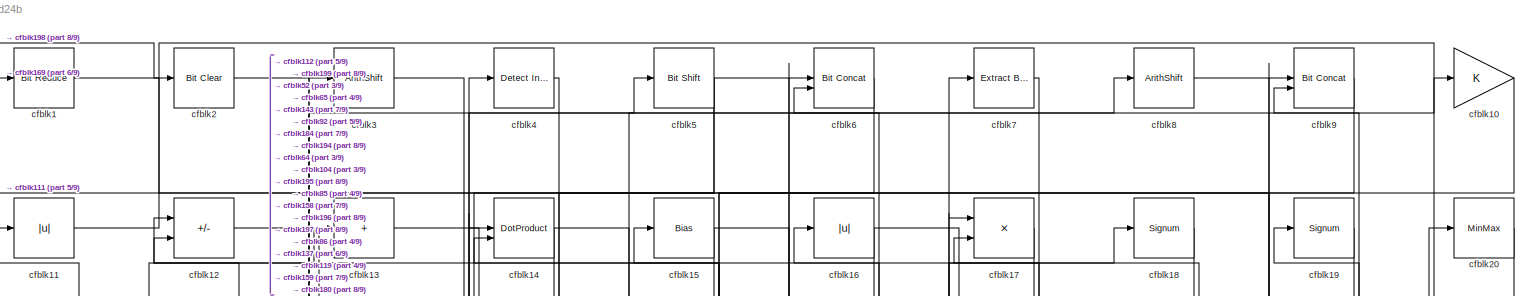
[diagram: root canvas - part 1/9, full width, top band]
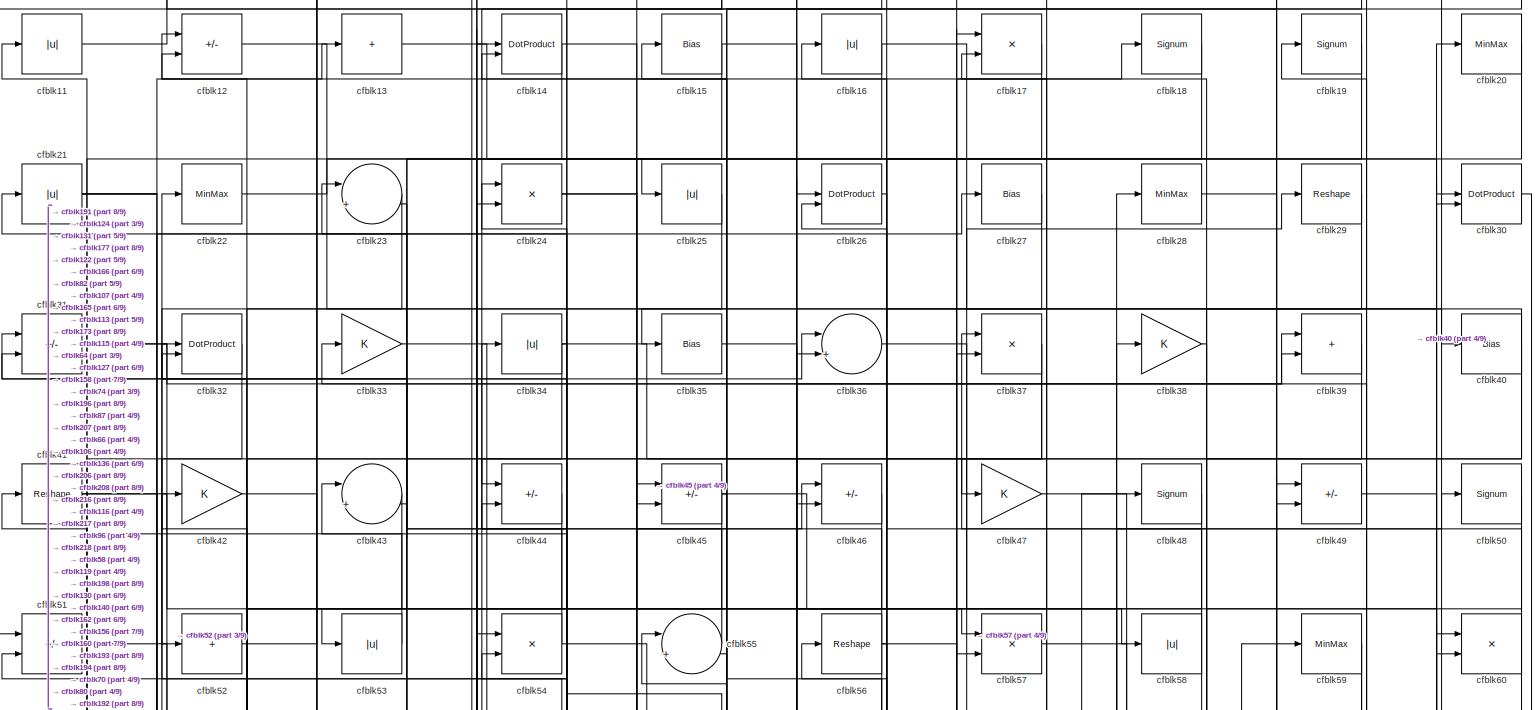
[diagram: root canvas - part 2/9, full width, top band]
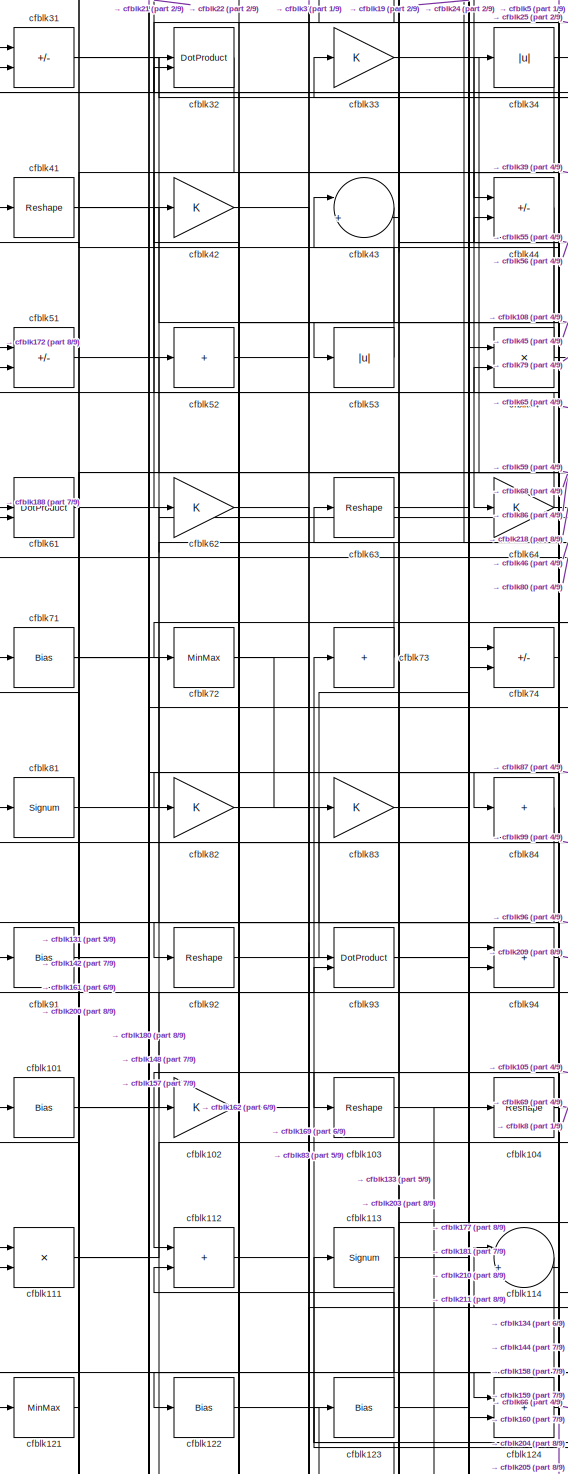
[diagram: root canvas - part 3/9, middle left region]
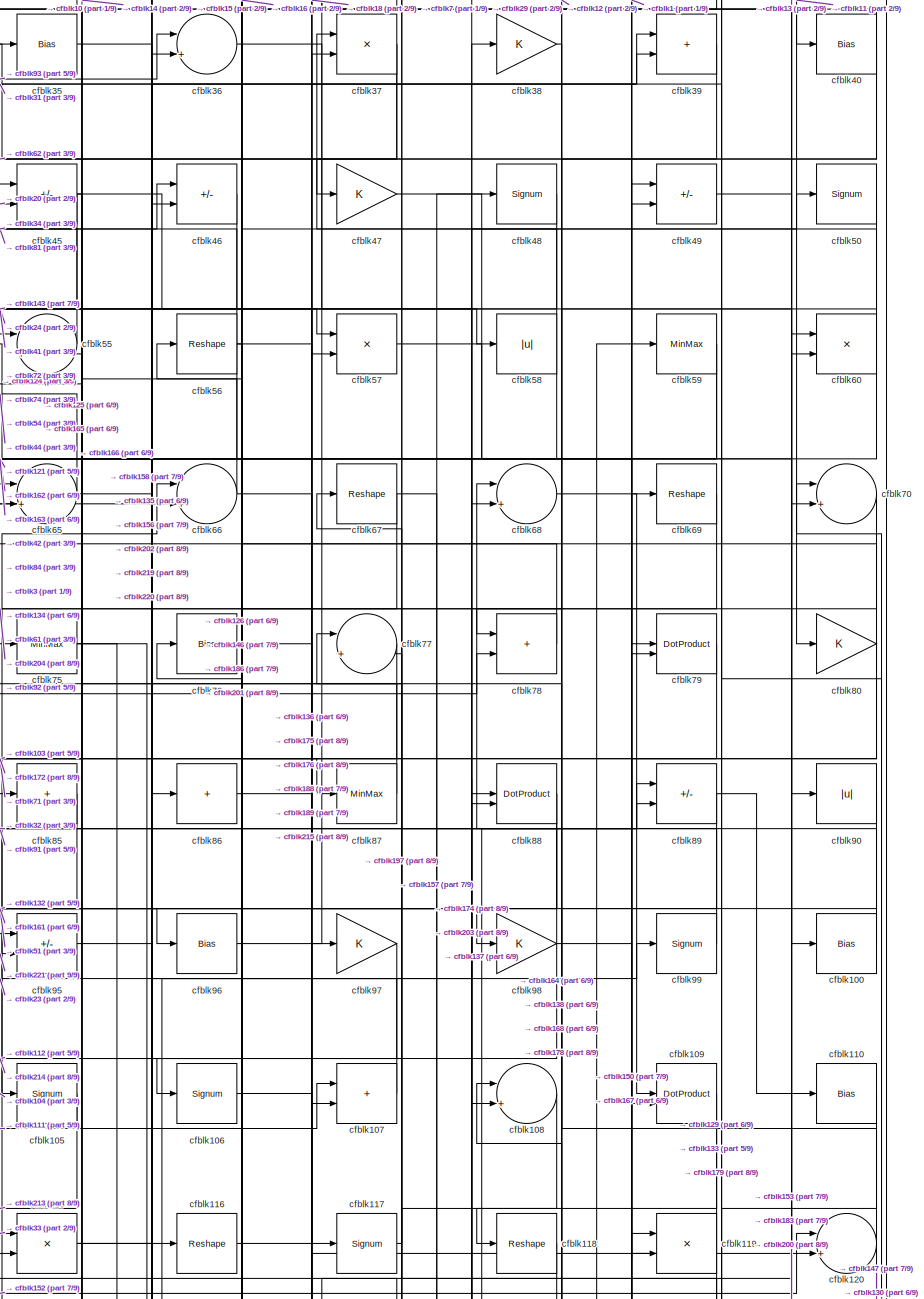
[diagram: root canvas - part 4/9, top right region]
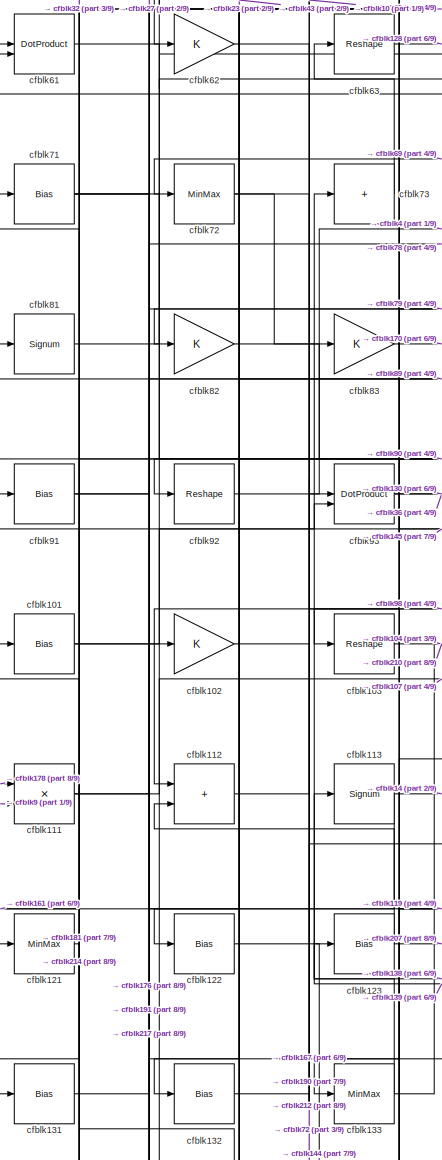
[diagram: root canvas - part 5/9, middle left region]
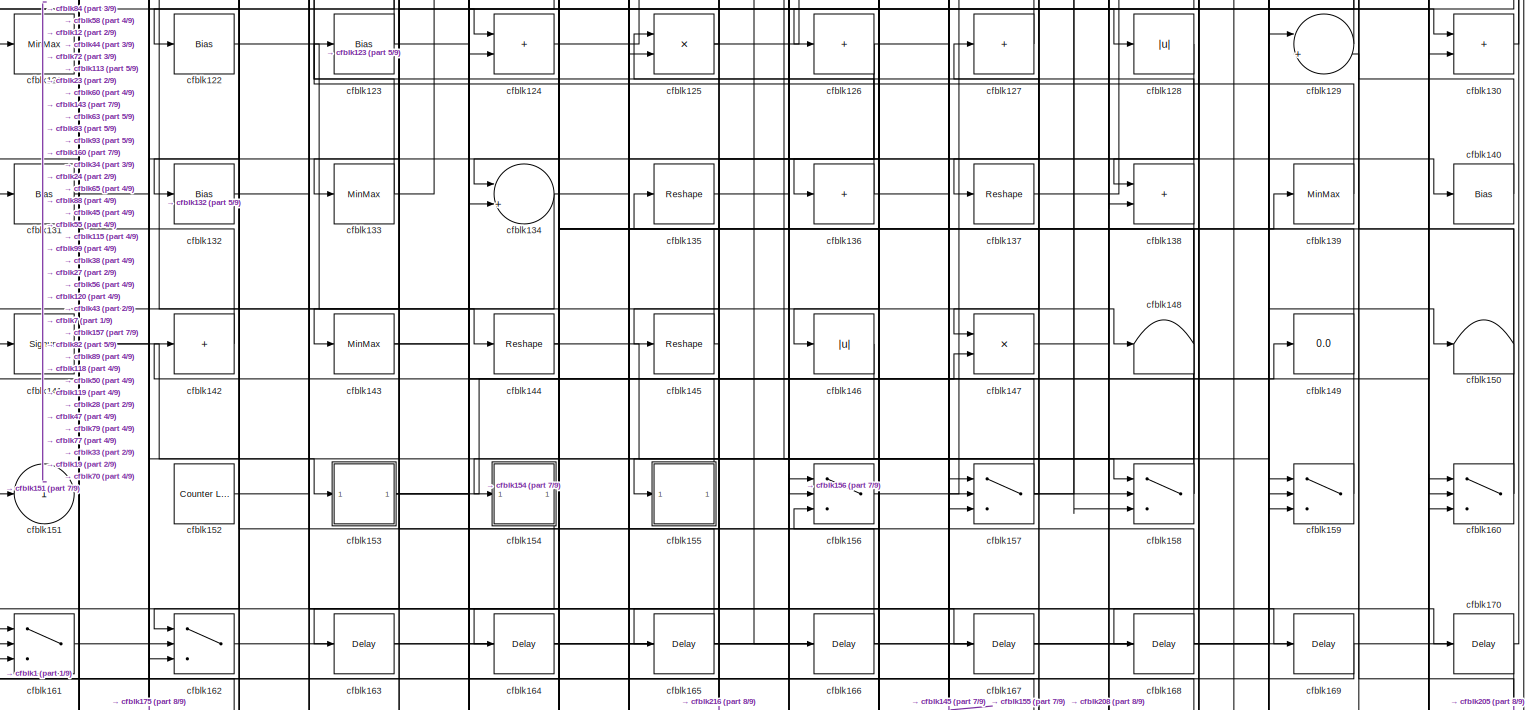
[diagram: root canvas - part 6/9, full width, middle band]
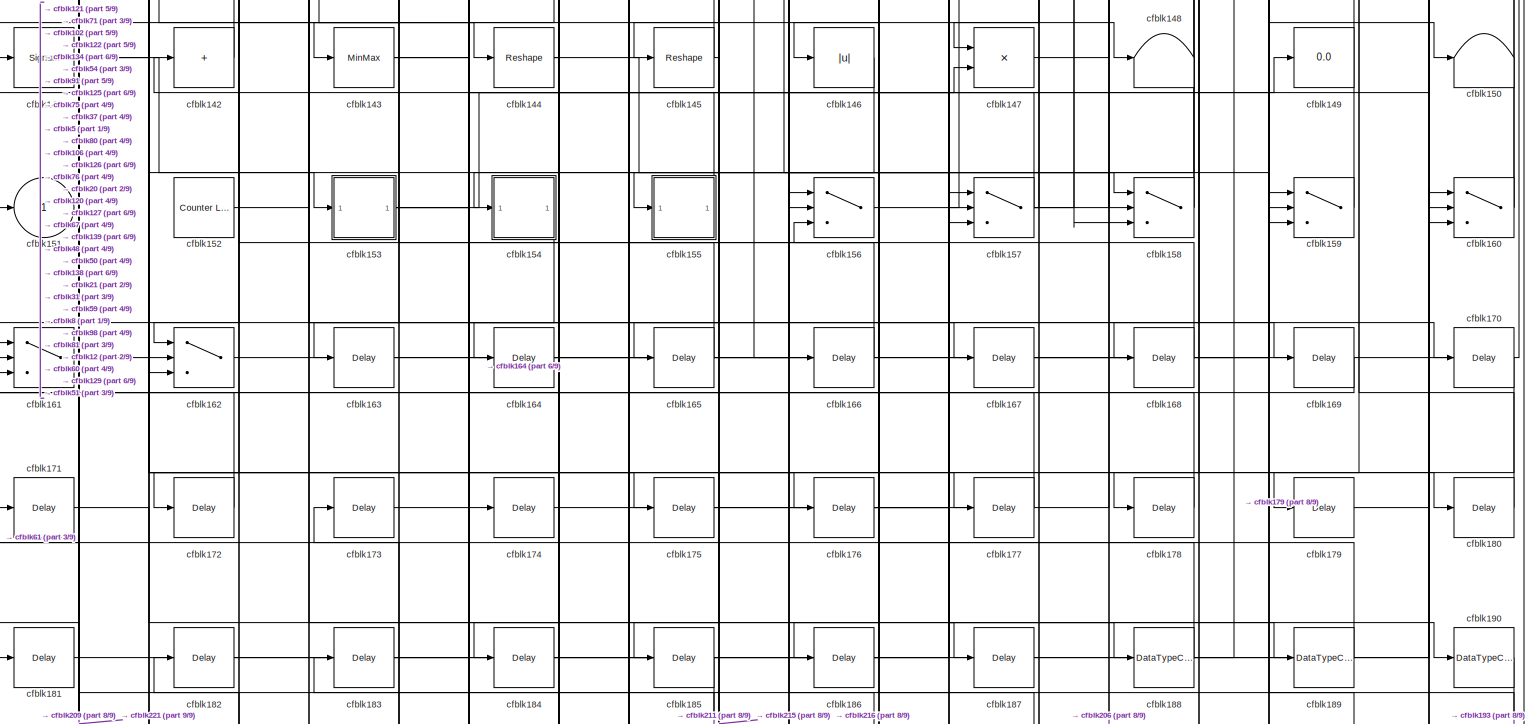
[diagram: root canvas - part 7/9, full width, bottom band]
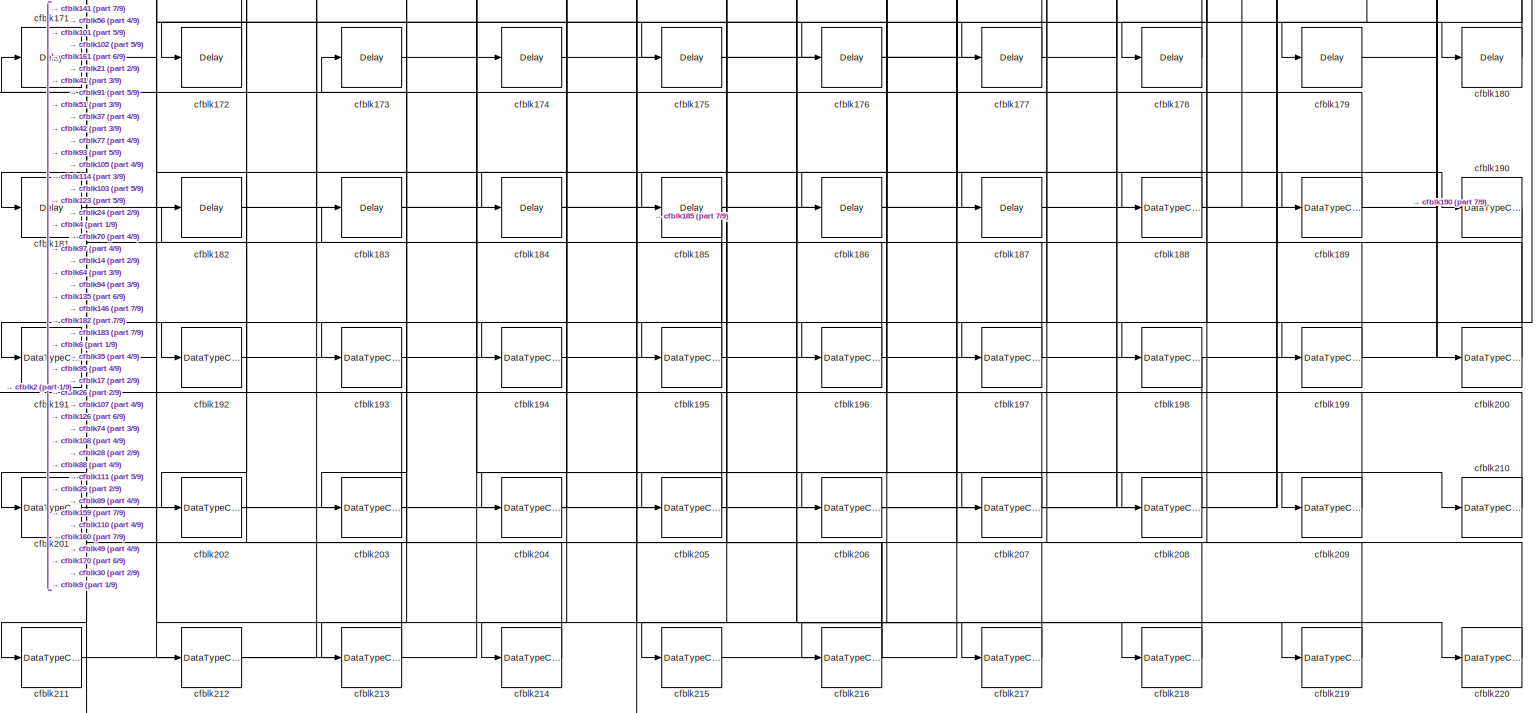
[diagram: root canvas - part 8/9, full width, bottom band]
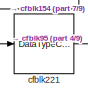
[diagram: root canvas - part 9/9, bottom left region]
MODEL slx_7cb9deabd24b
KIND model
CONFIG AbsTol = auto
CONFIG EnableMultiTasking = off
CONFIG FixedStep = auto
CONFIG MaxStep = auto
CONFIG MinStep = auto
CONFIG RelTol = 1e-3
CONFIG SampleTimeConstraint = Unconstrained
CONFIG SolverName = VariableStepAuto
CONFIG StartTime = 0.0
CONFIG StopTime = 10.0
BLOCK [Reference] cfblk1  REF=hdlsllib/Logic and Bit
Operations/Bit Reduce
  SourceBlock = hdlsllib/Logic and Bit\nOperations/Bit Reduce
  SourceType = Bit Reduce
BLOCK [Gain] cfblk10
BLOCK [Bias] cfblk100
  Bias = 0.0
  SaturateOnIntegerOverflow = off
BLOCK [Bias] cfblk101
  Bias = 0.0
  SaturateOnIntegerOverflow = off
BLOCK [Gain] cfblk102
BLOCK [Reshape] cfblk103
BLOCK [Reshape] cfblk104
BLOCK [Signum] cfblk105
BLOCK [Signum] cfblk106
BLOCK [Sum] cfblk107
  IconShape = rectangular
BLOCK [Sum] cfblk108
  Inputs = |++
BLOCK [DotProduct] cfblk109
  OutDataTypeStr = Inherit: Inherit via internal rule
BLOCK [Abs] cfblk11
  SaturateOnIntegerOverflow = off
BLOCK [Bias] cfblk110
  Bias = 0.0
  SaturateOnIntegerOverflow = off
BLOCK [Product] cfblk111
  Inputs = */
  RndMeth = Zero
  SaturateOnIntegerOverflow = on
BLOCK [Sum] cfblk112
  IconShape = rectangular
BLOCK [Signum] cfblk113
BLOCK [Sum] cfblk114
  Inputs = |++
BLOCK [Product] cfblk115
  Inputs = */
  RndMeth = Zero
  SaturateOnIntegerOverflow = on
BLOCK [Reshape] cfblk116
BLOCK [Signum] cfblk117
BLOCK [Reshape] cfblk118
BLOCK [Product] cfblk119
  Inputs = */
  RndMeth = Zero
  SaturateOnIntegerOverflow = on
BLOCK [Sum] cfblk12
  IconShape = rectangular
  Inputs = +-
BLOCK [Sum] cfblk120
  Inputs = |++
BLOCK [MinMax] cfblk121
BLOCK [Bias] cfblk122
  Bias = 0.0
  SaturateOnIntegerOverflow = off
BLOCK [Bias] cfblk123
  Bias = 0.0
  SaturateOnIntegerOverflow = off
BLOCK [Sum] cfblk124
  IconShape = rectangular
BLOCK [Product] cfblk125
  Inputs = */
  RndMeth = Zero
  SaturateOnIntegerOverflow = on
BLOCK [Sum] cfblk126
  IconShape = rectangular
  Inputs = +
BLOCK [Sum] cfblk127
  IconShape = rectangular
  Inputs = +
BLOCK [Abs] cfblk128
  SaturateOnIntegerOverflow = off
BLOCK [Sum] cfblk129
  Inputs = |++
BLOCK [Sum] cfblk13
  IconShape = rectangular
  Inputs = +
BLOCK [Sum] cfblk130
  IconShape = rectangular
BLOCK [Bias] cfblk131
  Bias = 0.0
  SaturateOnIntegerOverflow = off
BLOCK [Bias] cfblk132
  Bias = 0.0
  SaturateOnIntegerOverflow = off
BLOCK [MinMax] cfblk133
BLOCK [Sum] cfblk134
  Inputs = |++
BLOCK [Reshape] cfblk135
BLOCK [Sum] cfblk136
  IconShape = rectangular
  Inputs = +
BLOCK [Reshape] cfblk137
BLOCK [Sum] cfblk138
  IconShape = rectangular
BLOCK [MinMax] cfblk139
BLOCK [DotProduct] cfblk14
  OutDataTypeStr = Inherit: Inherit via internal rule
BLOCK [Bias] cfblk140
  Bias = 0.0
  SaturateOnIntegerOverflow = off
BLOCK [Signum] cfblk141
BLOCK [Sum] cfblk142
  IconShape = rectangular
  Inputs = +
BLOCK [MinMax] cfblk143
BLOCK [Reshape] cfblk144
BLOCK [Reshape] cfblk145
BLOCK [Abs] cfblk146
  SaturateOnIntegerOverflow = off
BLOCK [Product] cfblk147
  Inputs = */
  RndMeth = Zero
  SaturateOnIntegerOverflow = on
BLOCK [Terminator] cfblk148
BLOCK [Display] cfblk149
  Decimation = 1
BLOCK [Bias] cfblk15
  Bias = 0.0
  SaturateOnIntegerOverflow = off
BLOCK [Terminator] cfblk150
BLOCK [Outport] cfblk151
  VectorParamsAs1DForOutWhenUnconnected = off
BLOCK [Reference] cfblk152  REF=hdlsllib/Sources/Counter
Limited
  SourceBlock = hdlsllib/Sources/Counter\nLimited
  SourceType = Counter Limited
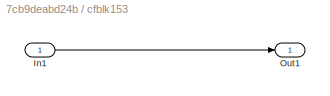
BLOCK [SubSystem] cfblk153
  LibrarySourceBlock = hdlsllib/Ports &\nSubsystems/Subsystem
BLOCK [Inport] cfblk153/In1
BLOCK [Outport] cfblk153/Out1
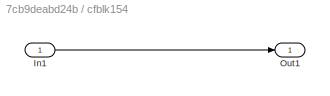
BLOCK [SubSystem] cfblk154
  LibrarySourceBlock = hdlsllib/Ports &\nSubsystems/Subsystem
BLOCK [Inport] cfblk154/In1
BLOCK [Outport] cfblk154/Out1
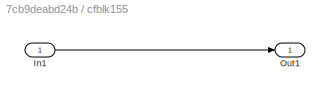
BLOCK [SubSystem] cfblk155
  LibrarySourceBlock = hdlsllib/Ports &\nSubsystems/Subsystem
BLOCK [Inport] cfblk155/In1
BLOCK [Outport] cfblk155/Out1
BLOCK [Switch] cfblk156
  InputSameDT = off
  SaturateOnIntegerOverflow = off
BLOCK [Switch] cfblk157
  InputSameDT = off
  SaturateOnIntegerOverflow = off
BLOCK [Switch] cfblk158
  InputSameDT = off
  SaturateOnIntegerOverflow = off
BLOCK [Switch] cfblk159
  InputSameDT = off
  SaturateOnIntegerOverflow = off
BLOCK [Abs] cfblk16
  SaturateOnIntegerOverflow = off
BLOCK [Switch] cfblk160
  InputSameDT = off
  SaturateOnIntegerOverflow = off
BLOCK [Switch] cfblk161
  InputSameDT = off
  SaturateOnIntegerOverflow = off
BLOCK [Switch] cfblk162
  InputSameDT = off
  SaturateOnIntegerOverflow = off
BLOCK [Delay] cfblk163
  InputPortMap = u0
  SampleTime = 1
BLOCK [Delay] cfblk164
  InputPortMap = u0
  SampleTime = 1
BLOCK [Delay] cfblk165
  InputPortMap = u0
  SampleTime = 1
BLOCK [Delay] cfblk166
  InputPortMap = u0
  SampleTime = 1
BLOCK [Delay] cfblk167
  InputPortMap = u0
  SampleTime = 1
BLOCK [Delay] cfblk168
  InputPortMap = u0
  SampleTime = 1
BLOCK [Delay] cfblk169
  InputPortMap = u0
  SampleTime = 1
BLOCK [Product] cfblk17
  Inputs = */
  RndMeth = Zero
  SaturateOnIntegerOverflow = on
BLOCK [Delay] cfblk170
  InputPortMap = u0
  SampleTime = 1
BLOCK [Delay] cfblk171
  InputPortMap = u0
  SampleTime = 1
BLOCK [Delay] cfblk172
  InputPortMap = u0
  SampleTime = 1
BLOCK [Delay] cfblk173
  InputPortMap = u0
  SampleTime = 1
BLOCK [Delay] cfblk174
  InputPortMap = u0
  SampleTime = 1
BLOCK [Delay] cfblk175
  InputPortMap = u0
  SampleTime = 1
BLOCK [Delay] cfblk176
  InputPortMap = u0
  SampleTime = 1
BLOCK [Delay] cfblk177
  InputPortMap = u0
  SampleTime = 1
BLOCK [Delay] cfblk178
  InputPortMap = u0
  SampleTime = 1
BLOCK [Delay] cfblk179
  InputPortMap = u0
  SampleTime = 1
BLOCK [Signum] cfblk18
BLOCK [Delay] cfblk180
  InputPortMap = u0
  SampleTime = 1
BLOCK [Delay] cfblk181
  InputPortMap = u0
  SampleTime = 1
BLOCK [Delay] cfblk182
  InputPortMap = u0
  SampleTime = 1
BLOCK [Delay] cfblk183
  InputPortMap = u0
  SampleTime = 1
BLOCK [Delay] cfblk184
  InputPortMap = u0
  SampleTime = 1
BLOCK [Delay] cfblk185
  InputPortMap = u0
  SampleTime = 1
BLOCK [Delay] cfblk186
  InputPortMap = u0
  SampleTime = 1
BLOCK [Delay] cfblk187
  InputPortMap = u0
  SampleTime = 1
BLOCK [DataTypeConversion] cfblk188
  RndMeth = Floor
  SaturateOnIntegerOverflow = off
BLOCK [DataTypeConversion] cfblk189
  OutDataTypeStr = uint8
  RndMeth = Floor
  SaturateOnIntegerOverflow = off
BLOCK [Signum] cfblk19
BLOCK [DataTypeConversion] cfblk190
  OutDataTypeStr = uint8
  RndMeth = Floor
  SaturateOnIntegerOverflow = off
BLOCK [DataTypeConversion] cfblk191
  OutDataTypeStr = uint8
  RndMeth = Floor
  SaturateOnIntegerOverflow = off
BLOCK [DataTypeConversion] cfblk192
  OutDataTypeStr = uint8
  RndMeth = Floor
  SaturateOnIntegerOverflow = off
BLOCK [DataTypeConversion] cfblk193
  OutDataTypeStr = uint8
  RndMeth = Floor
  SaturateOnIntegerOverflow = off
BLOCK [DataTypeConversion] cfblk194
  OutDataTypeStr = uint8
  RndMeth = Floor
  SaturateOnIntegerOverflow = off
BLOCK [DataTypeConversion] cfblk195
  OutDataTypeStr = uint8
  RndMeth = Floor
  SaturateOnIntegerOverflow = off
BLOCK [DataTypeConversion] cfblk196
  OutDataTypeStr = uint8
  RndMeth = Floor
  SaturateOnIntegerOverflow = off
BLOCK [DataTypeConversion] cfblk197
  OutDataTypeStr = uint8
  RndMeth = Floor
  SaturateOnIntegerOverflow = off
BLOCK [DataTypeConversion] cfblk198
  OutDataTypeStr = boolean
  RndMeth = Floor
  SaturateOnIntegerOverflow = off
BLOCK [DataTypeConversion] cfblk199
  OutDataTypeStr = uint8
  RndMeth = Floor
  SaturateOnIntegerOverflow = off
BLOCK [Reference] cfblk2  REF=simulink/Logic and Bit
Operations/Bit Clear
  LibrarySourceBlock = hdlsllib/Logic and Bit\nOperations/Bit Clear
  SourceBlock = simulink/Logic and Bit\nOperations/Bit Clear
  SourceType = Bit Clear
BLOCK [MinMax] cfblk20
BLOCK [DataTypeConversion] cfblk200
  OutDataTypeStr = uint8
  RndMeth = Floor
  SaturateOnIntegerOverflow = off
BLOCK [DataTypeConversion] cfblk201
  OutDataTypeStr = uint8
  RndMeth = Floor
  SaturateOnIntegerOverflow = off
BLOCK [DataTypeConversion] cfblk202
  OutDataTypeStr = uint8
  RndMeth = Floor
  SaturateOnIntegerOverflow = off
BLOCK [DataTypeConversion] cfblk203
  RndMeth = Floor
  SaturateOnIntegerOverflow = off
BLOCK [DataTypeConversion] cfblk204
  OutDataTypeStr = uint8
  RndMeth = Floor
  SaturateOnIntegerOverflow = off
BLOCK [DataTypeConversion] cfblk205
  OutDataTypeStr = uint8
  RndMeth = Floor
  SaturateOnIntegerOverflow = off
BLOCK [DataTypeConversion] cfblk206
  RndMeth = Floor
  SaturateOnIntegerOverflow = off
BLOCK [DataTypeConversion] cfblk207
  OutDataTypeStr = uint8
  RndMeth = Floor
  SaturateOnIntegerOverflow = off
BLOCK [DataTypeConversion] cfblk208
  OutDataTypeStr = uint8
  RndMeth = Floor
  SaturateOnIntegerOverflow = off
BLOCK [DataTypeConversion] cfblk209
  OutDataTypeStr = uint8
  RndMeth = Floor
  SaturateOnIntegerOverflow = off
BLOCK [Abs] cfblk21
  SaturateOnIntegerOverflow = off
BLOCK [DataTypeConversion] cfblk210
  OutDataTypeStr = uint8
  RndMeth = Floor
  SaturateOnIntegerOverflow = off
BLOCK [DataTypeConversion] cfblk211
  OutDataTypeStr = uint8
  RndMeth = Floor
  SaturateOnIntegerOverflow = off
BLOCK [DataTypeConversion] cfblk212
  OutDataTypeStr = uint8
  RndMeth = Floor
  SaturateOnIntegerOverflow = off
BLOCK [DataTypeConversion] cfblk213
  OutDataTypeStr = uint8
  RndMeth = Floor
  SaturateOnIntegerOverflow = off
BLOCK [DataTypeConversion] cfblk214
  OutDataTypeStr = uint8
  RndMeth = Floor
  SaturateOnIntegerOverflow = off
BLOCK [DataTypeConversion] cfblk215
  OutDataTypeStr = uint8
  RndMeth = Floor
  SaturateOnIntegerOverflow = off
BLOCK [DataTypeConversion] cfblk216
  RndMeth = Floor
  SaturateOnIntegerOverflow = off
BLOCK [DataTypeConversion] cfblk217
  OutDataTypeStr = uint8
  RndMeth = Floor
  SaturateOnIntegerOverflow = off
BLOCK [DataTypeConversion] cfblk218
  OutDataTypeStr = uint8
  RndMeth = Floor
  SaturateOnIntegerOverflow = off
BLOCK [DataTypeConversion] cfblk219
  OutDataTypeStr = uint8
  RndMeth = Floor
  SaturateOnIntegerOverflow = off
BLOCK [MinMax] cfblk22
BLOCK [DataTypeConversion] cfblk220
  OutDataTypeStr = uint8
  RndMeth = Floor
  SaturateOnIntegerOverflow = off
BLOCK [DataTypeConversion] cfblk221
  OutDataTypeStr = uint8
  RndMeth = Floor
  SaturateOnIntegerOverflow = off
BLOCK [Sum] cfblk23
  Inputs = |++
BLOCK [Product] cfblk24
  Inputs = */
  RndMeth = Zero
  SaturateOnIntegerOverflow = on
BLOCK [Abs] cfblk25
  SaturateOnIntegerOverflow = off
BLOCK [DotProduct] cfblk26
  OutDataTypeStr = Inherit: Inherit via internal rule
BLOCK [Bias] cfblk27
  Bias = 0.0
  SaturateOnIntegerOverflow = off
BLOCK [MinMax] cfblk28
BLOCK [Reshape] cfblk29
BLOCK [ArithShift] cfblk3
  BitShiftNumber = 8
  InputPortMap = u0
BLOCK [DotProduct] cfblk30
  OutDataTypeStr = Inherit: Inherit via internal rule
BLOCK [Sum] cfblk31
  IconShape = rectangular
  Inputs = +-
BLOCK [DotProduct] cfblk32
  OutDataTypeStr = Inherit: Inherit via internal rule
BLOCK [Gain] cfblk33
BLOCK [Abs] cfblk34
  SaturateOnIntegerOverflow = off
BLOCK [Bias] cfblk35
  Bias = 0.0
  SaturateOnIntegerOverflow = off
BLOCK [Sum] cfblk36
  Inputs = |++
BLOCK [Product] cfblk37
  Inputs = */
  RndMeth = Zero
  SaturateOnIntegerOverflow = on
BLOCK [Gain] cfblk38
BLOCK [Sum] cfblk39
  IconShape = rectangular
BLOCK [Reference] cfblk4  REF=simulink/Logic and Bit
Operations/Detect
Increase
  LibrarySourceBlock = hdlsllib/Logic and Bit\nOperations/Detect\nIncrease
  SourceBlock = simulink/Logic and Bit\nOperations/Detect\nIncrease
  SourceType = Detect Increase
BLOCK [Bias] cfblk40
  Bias = 0.0
  SaturateOnIntegerOverflow = off
BLOCK [Reshape] cfblk41
BLOCK [Gain] cfblk42
BLOCK [Sum] cfblk43
  Inputs = |++
BLOCK [Sum] cfblk44
  IconShape = rectangular
  Inputs = +-
BLOCK [Sum] cfblk45
  IconShape = rectangular
  Inputs = +-
BLOCK [Sum] cfblk46
  IconShape = rectangular
  Inputs = +-
BLOCK [Gain] cfblk47
BLOCK [Signum] cfblk48
BLOCK [Sum] cfblk49
  IconShape = rectangular
  Inputs = +-
BLOCK [Reference] cfblk5  REF=hdlsllib/Logic and Bit
Operations/Bit Shift
  SourceBlock = hdlsllib/Logic and Bit\nOperations/Bit Shift
  SourceType = Bit Shift
BLOCK [Signum] cfblk50
BLOCK [Sum] cfblk51
  IconShape = rectangular
  Inputs = +-
BLOCK [Sum] cfblk52
  IconShape = rectangular
  Inputs = +
BLOCK [Abs] cfblk53
  SaturateOnIntegerOverflow = off
BLOCK [Product] cfblk54
  Inputs = */
  RndMeth = Zero
  SaturateOnIntegerOverflow = on
BLOCK [Sum] cfblk55
  Inputs = |++
BLOCK [Reshape] cfblk56
BLOCK [Product] cfblk57
  Inputs = */
  RndMeth = Zero
  SaturateOnIntegerOverflow = on
BLOCK [Abs] cfblk58
  SaturateOnIntegerOverflow = off
BLOCK [MinMax] cfblk59
BLOCK [Reference] cfblk6  REF=hdlsllib/Logic and Bit
Operations/Bit Concat
  SourceBlock = hdlsllib/Logic and Bit\nOperations/Bit Concat
  SourceType = Bit Concat
BLOCK [Product] cfblk60
  Inputs = */
  RndMeth = Zero
  SaturateOnIntegerOverflow = on
BLOCK [DotProduct] cfblk61
  OutDataTypeStr = Inherit: Inherit via internal rule
BLOCK [Gain] cfblk62
BLOCK [Reshape] cfblk63
BLOCK [Gain] cfblk64
BLOCK [Sum] cfblk65
  Inputs = |++
BLOCK [Sum] cfblk66
  Inputs = |++
BLOCK [Reshape] cfblk67
BLOCK [Sum] cfblk68
  Inputs = |++
BLOCK [Reshape] cfblk69
BLOCK [Reference] cfblk7  REF=simulink/Logic and Bit
Operations/Extract Bits
  LibrarySourceBlock = hdlsllib/Logic and Bit\nOperations/Extract Bits
  SourceBlock = simulink/Logic and Bit\nOperations/Extract Bits
  SourceType = Extract Bits
BLOCK [Sum] cfblk70
  Inputs = |++
BLOCK [Bias] cfblk71
  Bias = 0.0
  SaturateOnIntegerOverflow = off
BLOCK [MinMax] cfblk72
BLOCK [Sum] cfblk73
  IconShape = rectangular
  Inputs = +
BLOCK [Sum] cfblk74
  IconShape = rectangular
  Inputs = +-
BLOCK [MinMax] cfblk75
BLOCK [Bias] cfblk76
  Bias = 0.0
  SaturateOnIntegerOverflow = off
BLOCK [Sum] cfblk77
  Inputs = |++
BLOCK [Sum] cfblk78
  IconShape = rectangular
BLOCK [DotProduct] cfblk79
  OutDataTypeStr = Inherit: Inherit via internal rule
BLOCK [ArithShift] cfblk8
  BitShiftNumber = 8
  InputPortMap = u0
BLOCK [Gain] cfblk80
BLOCK [Signum] cfblk81
BLOCK [Gain] cfblk82
BLOCK [Gain] cfblk83
BLOCK [Sum] cfblk84
  IconShape = rectangular
  Inputs = +
BLOCK [Sum] cfblk85
  IconShape = rectangular
  Inputs = +
BLOCK [Sum] cfblk86
  IconShape = rectangular
  Inputs = +
BLOCK [MinMax] cfblk87
BLOCK [DotProduct] cfblk88
  OutDataTypeStr = Inherit: Inherit via internal rule
BLOCK [Sum] cfblk89
  IconShape = rectangular
  Inputs = +-
BLOCK [Reference] cfblk9  REF=hdlsllib/Logic and Bit
Operations/Bit Concat
  SourceBlock = hdlsllib/Logic and Bit\nOperations/Bit Concat
  SourceType = Bit Concat
BLOCK [Abs] cfblk90
  SaturateOnIntegerOverflow = off
BLOCK [Bias] cfblk91
  Bias = 0.0
  SaturateOnIntegerOverflow = off
BLOCK [Reshape] cfblk92
BLOCK [DotProduct] cfblk93
  OutDataTypeStr = Inherit: Inherit via internal rule
BLOCK [Sum] cfblk94
  IconShape = rectangular
BLOCK [Sum] cfblk95
  IconShape = rectangular
  Inputs = +-
BLOCK [Bias] cfblk96
  Bias = 0.0
  SaturateOnIntegerOverflow = off
BLOCK [Gain] cfblk97
BLOCK [Gain] cfblk98
BLOCK [Signum] cfblk99
LINE cfblk100:1 -> cfblk68:1
NET cfblk101:1 -> cfblk176:1, cfblk93:2
LINE cfblk102:1 -> cfblk190:1
LINE cfblk103:1 -> cfblk210:1
NET cfblk104:1 -> cfblk69:1, cfblk8:1
LINE cfblk105:1 -> cfblk213:1
LINE cfblk106:1 -> cfblk189:1
LINE cfblk107:1 -> cfblk23:1
LINE cfblk108:1 -> cfblk197:1
LINE cfblk109:1 -> cfblk118:1
LINE cfblk10:1 -> cfblk85:1
LINE cfblk110:1 -> cfblk179:1
NET cfblk111:1 -> cfblk107:1, cfblk78:2
LINE cfblk112:1 -> cfblk10:1
NET cfblk113:1 -> cfblk14:1, cfblk161:2
LINE cfblk114:1 -> cfblk203:1
NET cfblk115:1 -> cfblk166:1, cfblk36:2
LINE cfblk116:1 -> cfblk18:1
LINE cfblk117:1 -> cfblk77:2
LINE cfblk118:1 -> cfblk164:1
NET cfblk119:1 -> cfblk12:1, cfblk133:1
LINE cfblk11:1 -> cfblk80:1
NET cfblk120:1 -> cfblk147:1, cfblk75:1
LINE cfblk121:1 -> cfblk181:1
LINE cfblk122:1 -> cfblk144:1
NET cfblk123:1 -> cfblk112:2, cfblk207:1
LINE cfblk124:1 -> cfblk66:1
NET cfblk125:1 -> cfblk38:1, cfblk55:1
NET cfblk126:1 -> cfblk145:1, cfblk155:1, cfblk208:1
LINE cfblk127:1 -> cfblk43:1
LINE cfblk128:1 -> cfblk162:2
LINE cfblk129:1 -> cfblk77:1
LINE cfblk12:1 -> cfblk160:2
LINE cfblk130:1 -> cfblk70:1
LINE cfblk131:1 -> cfblk27:1
LINE cfblk132:1 -> cfblk167:1
NET cfblk133:1 -> cfblk104:1, cfblk73:1
NET cfblk134:1 -> cfblk151:1, cfblk65:2
LINE cfblk135:1 -> cfblk99:1
NET cfblk136:1 -> cfblk120:2, cfblk55:2
LINE cfblk137:1 -> cfblk89:1
NET cfblk138:1 -> cfblk123:1, cfblk154:1
LINE cfblk139:1 -> cfblk113:1
LINE cfblk13:1 -> cfblk70:2
LINE cfblk140:1 -> cfblk33:1
NET cfblk141:1 -> cfblk153:1, cfblk187:1
LINE cfblk142:1 -> cfblk71:1
NET cfblk143:1 -> cfblk134:2, cfblk5:1
NET cfblk144:1 -> cfblk159:3, cfblk54:2
NET cfblk145:1 -> cfblk185:1, cfblk91:1
LINE cfblk146:1 -> cfblk215:1
LINE cfblk147:1 -> cfblk50:1
NET cfblk14:1 -> cfblk191:1, cfblk196:1
LINE cfblk152:1 -> cfblk120:1
LINE cfblk153/In1:1 -> cfblk153/Out1:1
NET cfblk153:1 -> cfblk147:2, cfblk149:1, cfblk60:1
LINE cfblk154/In1:1 -> cfblk154/Out1:1
LINE cfblk154:1 -> cfblk221:1
LINE cfblk155/In1:1 -> cfblk155/Out1:1
LINE cfblk155:1 -> cfblk142:1
LINE cfblk156:1 -> cfblk20:1
NET cfblk157:1 -> cfblk125:1, cfblk127:1, cfblk139:1, cfblk48:1
NET cfblk158:1 -> cfblk21:1, cfblk31:1
LINE cfblk159:1 -> cfblk81:1
NET cfblk15:1 -> cfblk43:2, cfblk57:1
NET cfblk160:1 -> cfblk129:2, cfblk51:2
LINE cfblk161:1 -> cfblk175:1
LINE cfblk162:1 -> cfblk19:1
LINE cfblk163:1 -> cfblk79:2
LINE cfblk164:1 -> cfblk156:1
LINE cfblk165:1 -> cfblk23:2
LINE cfblk166:1 -> cfblk12:2
LINE cfblk167:1 -> cfblk119:1
LINE cfblk168:1 -> cfblk45:1
LINE cfblk169:1 -> cfblk1:1
NET cfblk16:1 -> cfblk40:1, cfblk53:1
LINE cfblk170:1 -> cfblk205:1
LINE cfblk171:1 -> cfblk212:1
LINE cfblk172:1 -> cfblk51:1
LINE cfblk173:1 -> cfblk24:2
LINE cfblk174:1 -> cfblk88:2
LINE cfblk175:1 -> cfblk107:2
LINE cfblk176:1 -> cfblk37:2
LINE cfblk177:1 -> cfblk74:1
LINE cfblk178:1 -> cfblk111:1
LINE cfblk179:1 -> cfblk160:1
LINE cfblk17:1 -> cfblk216:1
LINE cfblk180:1 -> cfblk9:2
LINE cfblk181:1 -> cfblk54:1
LINE cfblk182:1 -> cfblk157:1
LINE cfblk183:1 -> cfblk60:2
LINE cfblk184:1 -> cfblk157:3
LINE cfblk185:1 -> cfblk211:1
LINE cfblk186:1 -> cfblk156:3
LINE cfblk187:1 -> cfblk160:3
NET cfblk188:1 -> cfblk59:1, cfblk61:1
LINE cfblk189:1 -> cfblk76:1
LINE cfblk18:1 -> cfblk106:1
LINE cfblk190:1 -> cfblk193:1
LINE cfblk191:1 -> cfblk102:1
LINE cfblk192:1 -> cfblk174:1
LINE cfblk193:1 -> cfblk30:1
LINE cfblk194:1 -> cfblk30:2
LINE cfblk195:1 -> cfblk173:1
LINE cfblk196:1 -> cfblk6:1
LINE cfblk197:1 -> cfblk6:2
LINE cfblk198:1 -> cfblk2:1
LINE cfblk199:1 -> cfblk9:1
LINE cfblk19:1 -> cfblk124:2
LINE cfblk1:1 -> cfblk119:2
LINE cfblk200:1 -> cfblk41:1
LINE cfblk201:1 -> cfblk49:1
LINE cfblk202:1 -> cfblk49:2
NET cfblk203:1 -> cfblk42:1, cfblk88:1
LINE cfblk204:1 -> cfblk114:1
LINE cfblk205:1 -> cfblk114:2
NET cfblk206:1 -> cfblk159:2, cfblk28:1
LINE cfblk207:1 -> cfblk26:1
LINE cfblk208:1 -> cfblk26:2
LINE cfblk209:1 -> cfblk141:1
LINE cfblk20:1 -> cfblk45:2
LINE cfblk210:1 -> cfblk94:1
LINE cfblk211:1 -> cfblk94:2
LINE cfblk212:1 -> cfblk93:1
LINE cfblk213:1 -> cfblk171:1
LINE cfblk214:1 -> cfblk101:1
LINE cfblk215:1 -> cfblk97:1
NET cfblk216:1 -> cfblk135:1, cfblk182:1, cfblk183:1
LINE cfblk217:1 -> cfblk17:1
LINE cfblk218:1 -> cfblk17:2
LINE cfblk219:1 -> cfblk108:1
NET cfblk21:1 -> cfblk124:1, cfblk13:1, cfblk177:1
LINE cfblk220:1 -> cfblk95:1
LINE cfblk221:1 -> cfblk95:2
LINE cfblk22:1 -> cfblk25:1
LINE cfblk23:1 -> cfblk122:1
NET cfblk24:1 -> cfblk140:1, cfblk58:1
LINE cfblk25:1 -> cfblk52:1
LINE cfblk26:1 -> cfblk206:1
LINE cfblk27:1 -> cfblk136:1
LINE cfblk28:1 -> cfblk130:1
LINE cfblk29:1 -> cfblk198:1
LINE cfblk2:1 -> cfblk199:1
LINE cfblk30:1 -> cfblk192:1
NET cfblk31:1 -> cfblk39:2, cfblk86:1
LINE cfblk32:1 -> cfblk131:1
LINE cfblk33:1 -> cfblk115:1
NET cfblk34:1 -> cfblk134:1, cfblk44:1, cfblk46:2
LINE cfblk35:1 -> cfblk220:1
LINE cfblk36:1 -> cfblk90:1
NET cfblk37:1 -> cfblk156:2, cfblk202:1
LINE cfblk38:1 -> cfblk168:1
LINE cfblk39:1 -> cfblk62:1
LINE cfblk3:1 -> cfblk65:1
NET cfblk40:1 -> cfblk35:1, cfblk47:1, cfblk78:1
NET cfblk41:1 -> cfblk108:2, cfblk180:1
LINE cfblk42:1 -> cfblk68:2
LINE cfblk43:1 -> cfblk82:1
LINE cfblk44:1 -> cfblk162:1
NET cfblk45:1 -> cfblk165:1, cfblk57:2, cfblk74:2
LINE cfblk46:1 -> cfblk72:1
LINE cfblk47:1 -> cfblk129:1
LINE cfblk48:1 -> cfblk143:1
LINE cfblk49:1 -> cfblk200:1
LINE cfblk4:1 -> cfblk194:1
LINE cfblk50:1 -> cfblk138:1
LINE cfblk51:1 -> cfblk96:1
LINE cfblk52:1 -> cfblk3:1
LINE cfblk53:1 -> cfblk11:1
NET cfblk54:1 -> cfblk31:2, cfblk79:1
LINE cfblk55:1 -> cfblk34:1
NET cfblk56:1 -> cfblk126:1, cfblk201:1, cfblk32:2, cfblk98:1
LINE cfblk57:1 -> cfblk100:1
NET cfblk58:1 -> cfblk162:3, cfblk16:1
NET cfblk59:1 -> cfblk121:1, cfblk84:1
NET cfblk5:1 -> cfblk158:2, cfblk184:1, cfblk64:1
NET cfblk60:1 -> cfblk163:1, cfblk37:1
LINE cfblk61:1 -> cfblk66:2
LINE cfblk62:1 -> cfblk105:1
LINE cfblk63:1 -> cfblk128:1
NET cfblk64:1 -> cfblk218:1, cfblk22:1
NET cfblk65:1 -> cfblk39:1, cfblk44:2
NET cfblk66:1 -> cfblk117:1, cfblk14:2
NET cfblk67:1 -> cfblk146:1, cfblk158:3
LINE cfblk68:1 -> cfblk109:1
LINE cfblk69:1 -> cfblk92:1
LINE cfblk6:1 -> cfblk195:1
LINE cfblk70:1 -> cfblk204:1
NET cfblk71:1 -> cfblk148:1, cfblk157:2, cfblk87:1
NET cfblk72:1 -> cfblk169:1, cfblk83:1
LINE cfblk73:1 -> cfblk63:1
LINE cfblk74:1 -> cfblk24:1
NET cfblk75:1 -> cfblk116:1, cfblk158:1
LINE cfblk76:1 -> cfblk188:1
LINE cfblk77:1 -> cfblk172:1
LINE cfblk78:1 -> cfblk56:1
LINE cfblk79:1 -> cfblk103:1
LINE cfblk7:1 -> cfblk137:1
NET cfblk80:1 -> cfblk109:2, cfblk186:1, cfblk61:2
LINE cfblk81:1 -> cfblk46:1
LINE cfblk82:1 -> cfblk138:2
LINE cfblk83:1 -> cfblk170:1
LINE cfblk84:1 -> cfblk161:1
LINE cfblk85:1 -> cfblk115:2
LINE cfblk86:1 -> cfblk7:1
LINE cfblk87:1 -> cfblk15:1
NET cfblk88:1 -> cfblk125:2, cfblk161:3
NET cfblk89:1 -> cfblk110:1, cfblk178:1
LINE cfblk8:1 -> cfblk159:1
LINE cfblk90:1 -> cfblk132:1
NET cfblk91:1 -> cfblk217:1, cfblk89:2
LINE cfblk92:1 -> cfblk4:1
NET cfblk93:1 -> cfblk130:2, cfblk36:1
LINE cfblk94:1 -> cfblk209:1
LINE cfblk95:1 -> cfblk219:1
LINE cfblk96:1 -> cfblk29:1
LINE cfblk97:1 -> cfblk214:1
NET cfblk98:1 -> cfblk112:1, cfblk150:1, cfblk67:1
LINE cfblk99:1 -> cfblk32:1
LINE cfblk9:1 -> cfblk111:2
note: NET lines group one-source signal fan-out (src -> all destinations, sorted); 1:1 wires keep LINE
